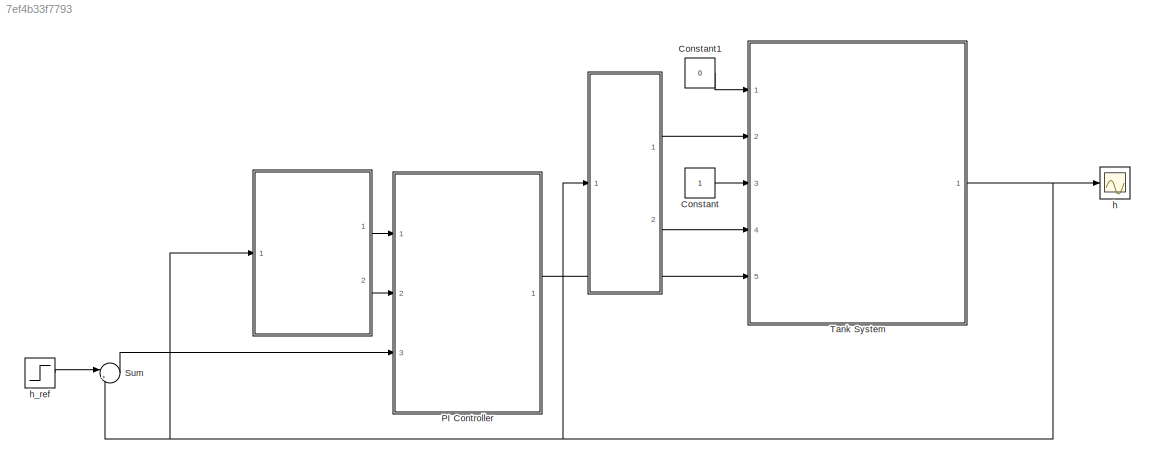
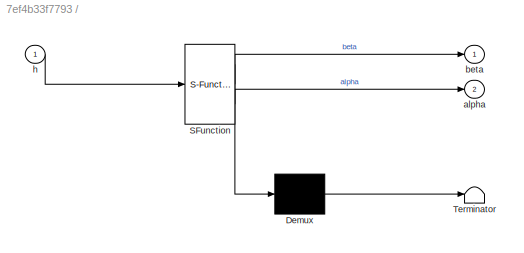
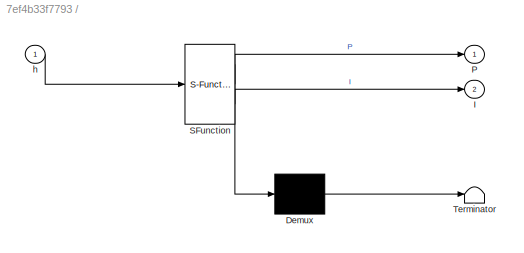
MODEL slx_7ef4b33f7793
KIND model
BLOCK [SubSystem]  
  ErrorFcn = Stateflow.Translate.translate
  FunctionWithSeparateData = off
  MaskHideContents = off
  MinAlgLoopOccurrences = off
  Opaque = off
  PermitHierarchicalResolution = ExplicitOnly
  Ports = [1, 2]
  PropExecContextOutsideSubsystem = off
  RTWSystemCode = Auto
  RequestExecContextInheritance = off
  SFBlockType = MATLAB Function
  TreatAsAtomicUnit = on
BLOCK [SubSystem]   
  ErrorFcn = Stateflow.Translate.translate
  FunctionWithSeparateData = off
  MaskHideContents = off
  MinAlgLoopOccurrences = off
  Opaque = off
  PermitHierarchicalResolution = ExplicitOnly
  Ports = [1, 2]
  PropExecContextOutsideSubsystem = off
  RTWSystemCode = Auto
  RequestExecContextInheritance = off
  SFBlockType = MATLAB Function
  TreatAsAtomicUnit = on
BLOCK [Demux]   / Demux 
  Outputs = 1
  Ports = [1, 1]
BLOCK [S-Function]   / SFunction 
  EnableBusSupport = on
  FunctionName = sf_sfun
  PortCounts = [1 3]
  Ports = [1, 3]
  Tag = Stateflow S-Function Tank_System 2
BLOCK [Terminator]   / Terminator 
BLOCK [Outport]   /I
  IconDisplay = Port number
  Port = 2
BLOCK [Outport]   /P
  IconDisplay = Port number
BLOCK [Inport]   /h
  IconDisplay = Port number
BLOCK [Demux]  / Demux 
  Outputs = 1
  Ports = [1, 1]
BLOCK [S-Function]  / SFunction 
  EnableBusSupport = on
  FunctionName = sf_sfun
  PortCounts = [1 3]
  Ports = [1, 3]
  Tag = Stateflow S-Function Tank_System 1
BLOCK [Terminator]  / Terminator 
BLOCK [Outport]  /alpha
  IconDisplay = Port number
  Port = 2
BLOCK [Outport]  /beta
  IconDisplay = Port number
BLOCK [Inport]  /h
  IconDisplay = Port number
BLOCK [Constant] Constant
BLOCK [Constant] Constant1
  Value = 0
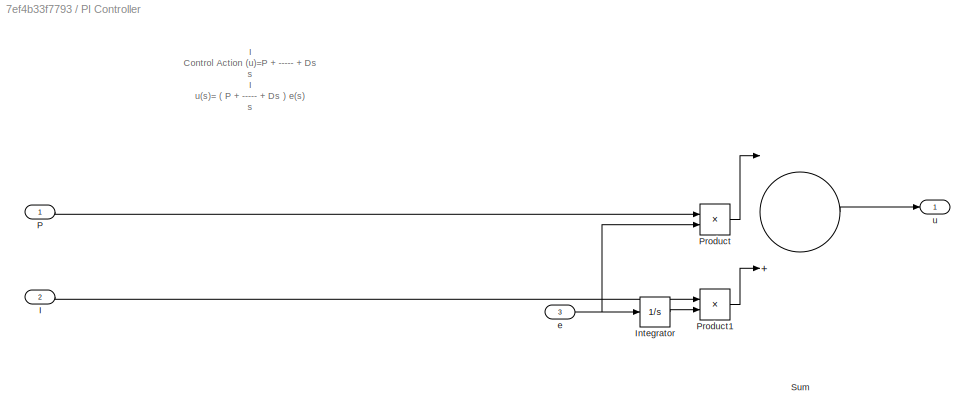
BLOCK [SubSystem] PI Controller
  FunctionWithSeparateData = off
  MaskHideContents = off
  MinAlgLoopOccurrences = off
  Opaque = off
  Ports = [3, 1]
  PropExecContextOutsideSubsystem = off
  RTWSystemCode = Auto
  RequestExecContextInheritance = off
BLOCK [Inport] PI Controller/I
  IconDisplay = Port number
  Port = 2
BLOCK [Integrator] PI Controller/Integrator
  Ports = [1, 1]
BLOCK [Inport] PI Controller/P
  IconDisplay = Port number
BLOCK [Product] PI Controller/Product
  InputSameDT = off
  OutDataTypeStr = Inherit: Inherit via internal rule
  Ports = [2, 1]
  RndMeth = Floor
  SaturateOnIntegerOverflow = off
BLOCK [Product] PI Controller/Product1
  InputSameDT = off
  OutDataTypeStr = Inherit: Inherit via internal rule
  Ports = [2, 1]
  RndMeth = Floor
  SaturateOnIntegerOverflow = off
BLOCK [Sum] PI Controller/Sum
  InputSameDT = off
  Inputs = |++
  OutDataTypeStr = Inherit: Inherit via internal rule
  Ports = [2, 1]
  SaturateOnIntegerOverflow = off
BLOCK [Inport] PI Controller/e
  IconDisplay = Port number
  Port = 3
BLOCK [Outport] PI Controller/u
  IconDisplay = Port number
BLOCK [Sum] Sum
  IconShape = round
  InputSameDT = off
  Inputs = |+-
  OutDataTypeStr = Inherit: Inherit via internal rule
  Ports = [2, 1]
  SaturateOnIntegerOverflow = off
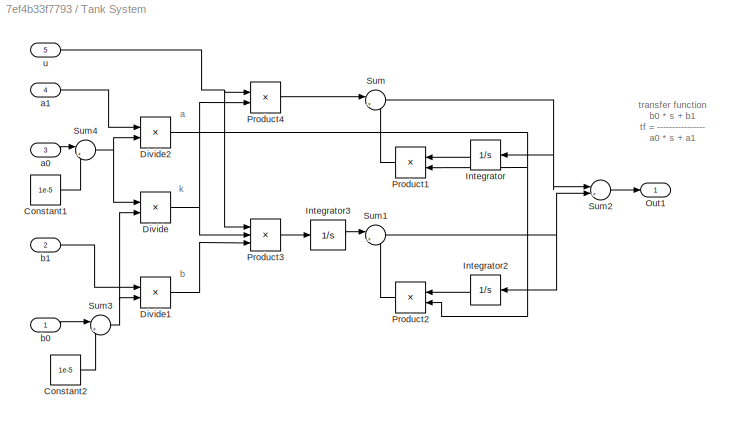
BLOCK [SubSystem] Tank System
  FunctionWithSeparateData = off
  MaskHideContents = off
  MinAlgLoopOccurrences = off
  Opaque = off
  Ports = [5, 1]
  PropExecContextOutsideSubsystem = off
  RTWSystemCode = Auto
  RequestExecContextInheritance = off
BLOCK [Constant] Tank System/Constant1
  Value = 1e-5
BLOCK [Constant] Tank System/Constant2
  Value = 1e-5
BLOCK [Product] Tank System/Divide
  InputSameDT = off
  Inputs = /*
  OutDataTypeStr = Inherit: Inherit via internal rule
  Ports = [2, 1]
  RndMeth = Floor
  SaturateOnIntegerOverflow = off
BLOCK [Product] Tank System/Divide1
  InputSameDT = off
  Inputs = */
  OutDataTypeStr = Inherit: Inherit via internal rule
  Ports = [2, 1]
  RndMeth = Floor
  SaturateOnIntegerOverflow = off
BLOCK [Product] Tank System/Divide2
  InputSameDT = off
  Inputs = */
  OutDataTypeStr = Inherit: Inherit via internal rule
  Ports = [2, 1]
  RndMeth = Floor
  SaturateOnIntegerOverflow = off
BLOCK [Integrator] Tank System/Integrator
  Ports = [1, 1]
BLOCK [Integrator] Tank System/Integrator2
  Ports = [1, 1]
BLOCK [Integrator] Tank System/Integrator3
  Ports = [1, 1]
BLOCK [Outport] Tank System/Out1
  IconDisplay = Port number
BLOCK [Product] Tank System/Product1
  InputSameDT = off
  OutDataTypeStr = Inherit: Inherit via internal rule
  Ports = [2, 1]
  RndMeth = Floor
  SaturateOnIntegerOverflow = off
BLOCK [Product] Tank System/Product2
  InputSameDT = off
  OutDataTypeStr = Inherit: Inherit via internal rule
  Ports = [2, 1]
  RndMeth = Floor
  SaturateOnIntegerOverflow = off
BLOCK [Product] Tank System/Product3
  InputSameDT = off
  Inputs = 3
  OutDataTypeStr = Inherit: Inherit via internal rule
  Ports = [3, 1]
  RndMeth = Floor
  SaturateOnIntegerOverflow = off
BLOCK [Product] Tank System/Product4
  InputSameDT = off
  OutDataTypeStr = Inherit: Inherit via internal rule
  Ports = [2, 1]
  RndMeth = Floor
  SaturateOnIntegerOverflow = off
BLOCK [Sum] Tank System/Sum
  IconShape = round
  InputSameDT = off
  Inputs = |+-
  OutDataTypeStr = Inherit: Inherit via internal rule
  Ports = [2, 1]
  SaturateOnIntegerOverflow = off
BLOCK [Sum] Tank System/Sum1
  IconShape = round
  InputSameDT = off
  Inputs = |+-
  OutDataTypeStr = Inherit: Inherit via internal rule
  Ports = [2, 1]
  SaturateOnIntegerOverflow = off
BLOCK [Sum] Tank System/Sum2
  IconShape = round
  InputSameDT = off
  Inputs = |++
  OutDataTypeStr = Inherit: Inherit via internal rule
  Ports = [2, 1]
  SaturateOnIntegerOverflow = off
BLOCK [Sum] Tank System/Sum3
  IconShape = round
  InputSameDT = off
  Inputs = |++
  OutDataTypeStr = Inherit: Inherit via internal rule
  Ports = [2, 1]
  SaturateOnIntegerOverflow = off
BLOCK [Sum] Tank System/Sum4
  IconShape = round
  InputSameDT = off
  Inputs = |++
  OutDataTypeStr = Inherit: Inherit via internal rule
  Ports = [2, 1]
  SaturateOnIntegerOverflow = off
BLOCK [Inport] Tank System/a0
  IconDisplay = Port number
  Port = 3
BLOCK [Inport] Tank System/a1
  IconDisplay = Port number
  Port = 4
BLOCK [Inport] Tank System/b0
  IconDisplay = Port number
BLOCK [Inport] Tank System/b1
  IconDisplay = Port number
  Port = 2
BLOCK [Inport] Tank System/u
  IconDisplay = Port number
  Port = 5
BLOCK [Scope] h
  DataFormat = StructureWithTime
  Floating = off
  LimitDataPoints = off
  NumInputPorts = 1
  Ports = [1]
  SampleTime = 0
  ShowLegends = off
BLOCK [Step] h_ref
  After = 20
  Before = 10
  SampleTime = 0
  Time = 5
ANNOTATION PI Controller: I Control Action (u)=P + ----- + Ds s I u(s)= ( P + ----- + Ds ) e(s) s
ANNOTATION Tank System: a
ANNOTATION Tank System: b
ANNOTATION Tank System: k
ANNOTATION Tank System: transfer function b0 * s + b1 tf = ---------------- a0 * s + a1
LINE   :1 -> PI Controller:1
LINE   :2 -> PI Controller:2
LINE  :1 -> Tank System:2
LINE  :2 -> Tank System:4
LINE Constant1:1 -> Tank System:1
LINE Constant:1 -> Tank System:3
LINE PI Controller/I:1 -> PI Controller/Product1:1
LINE PI Controller/Integrator:1 -> PI Controller/Product1:2
LINE PI Controller/P:1 -> PI Controller/Product:1
LINE PI Controller/Product1:1 -> PI Controller/Sum:2
LINE PI Controller/Product:1 -> PI Controller/Sum:1
LINE PI Controller/Sum:1 -> PI Controller/u:1
NET PI Controller/e:1 -> PI Controller/Integrator:1, PI Controller/Product:2
LINE PI Controller:1 -> Tank System:5
LINE Sum:1 -> PI Controller:3
LINE Tank System/Constant1:1 -> Tank System/Sum4:2
LINE Tank System/Constant2:1 -> Tank System/Sum3:2
LINE Tank System/Divide1:1 -> Tank System/Product3:3
NET Tank System/Divide2:1 -> Tank System/Product1:2, Tank System/Product2:2
NET Tank System/Divide:1 -> Tank System/Product3:2, Tank System/Product4:2
LINE Tank System/Integrator2:1 -> Tank System/Product2:1
LINE Tank System/Integrator3:1 -> Tank System/Sum1:1
LINE Tank System/Integrator:1 -> Tank System/Product1:1
LINE Tank System/Product1:1 -> Tank System/Sum:2
LINE Tank System/Product2:1 -> Tank System/Sum1:2
LINE Tank System/Product3:1 -> Tank System/Integrator3:1
LINE Tank System/Product4:1 -> Tank System/Sum:1
NET Tank System/Sum1:1 -> Tank System/Integrator2:1, Tank System/Sum2:2
LINE Tank System/Sum2:1 -> Tank System/Out1:1
NET Tank System/Sum3:1 -> Tank System/Divide1:2, Tank System/Divide:2
NET Tank System/Sum4:1 -> Tank System/Divide2:2, Tank System/Divide:1
NET Tank System/Sum:1 -> Tank System/Integrator:1, Tank System/Sum2:1
LINE Tank System/a0:1 -> Tank System/Sum4:1
LINE Tank System/a1:1 -> Tank System/Divide2:1
LINE Tank System/b0:1 -> Tank System/Sum3:1
LINE Tank System/b1:1 -> Tank System/Divide1:1
NET Tank System/u:1 -> Tank System/Product3:1, Tank System/Product4:1
NET Tank System:1 ->   :1,  :1, Sum:2, h:1
LINE h_ref:1 -> Sum:1
note: NET lines group one-source signal fan-out (src -> all destinations, sorted); 1:1 wires keep LINE
